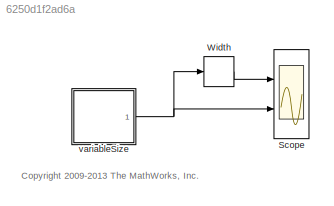
MODEL slx_6250d1f2ad6a
KIND model
CONFIG AbsTol = auto
CONFIG EnableMultiTasking = on
CONFIG FixedStep = auto
CONFIG MaxStep = auto
CONFIG MinStep = auto
CONFIG RelTol = 1e-3
CONFIG SampleTimeConstraint = Unconstrained
CONFIG Solver = FixedStepDiscrete
CONFIG SolverName = FixedStepDiscrete
CONFIG StartTime = 0.0
CONFIG StopTime = 5.0
BLOCK [Scope] Scope
  NumInputPorts = 2
  Ports = [2]
  ScopeSpecificationString = Simulink.scopes.TimeScopeBlockCfg('CurrentConfiguration', extmgr.ConfigurationSet(extmgr.Configuration('Core','General UI',true),extmgr.Configuration('Core','Source UI',true),extmgr.Configuration('Sources','WiredSimulink',true,'DataLoggingSaveFormat','StructureWithTime','DataLoggingLimitDataPoints',true,'DataLoggingDecimation','1'),extmgr.Configuration('Visuals','Time Domain',true,'SerializedDispl...<+2413ch>
BLOCK [Width] Width
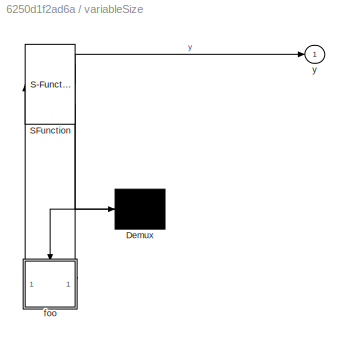
BLOCK [SubSystem] variableSize
  ErrorFcn = Stateflow.Translate.translate
  PermitHierarchicalResolution = ExplicitOnly
  Ports = [0, 1]
  RequestExecContextInheritance = off
  SFBlockType = Chart
  TreatAsAtomicUnit = on
  Variant = off
BLOCK [Demux] variableSize/ Demux 
  Outputs = 1
  Ports = [1, 1]
BLOCK [S-Function] variableSize/ SFunction 
  EnableBusSupport = off
  FunctionName = sf_sfun
  PortCounts = [1 3]
  Ports = [1, 3]
  SFcnIsStateOwnerBlock = off
  SFunctionDeploymentMode = off
  Tag = Stateflow S-Function sf_variable_size_data 1
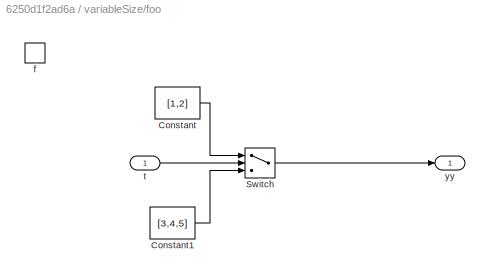
BLOCK [SubSystem] variableSize/foo
  Ports = [1, 1, 0, 1]
  PreDeleteFcn = Stateflow.SLINSF.SimulinkMan.removePreDeleteFcn
  RequestExecContextInheritance = off
  UndoDeleteFcn = Stateflow.SLINSF.SimulinkMan.restorePreDeleteFcn
  Variant = off
BLOCK [Constant] variableSize/foo/Constant
  Value = [1,2]
BLOCK [Constant] variableSize/foo/Constant1
  Value = [3,4,5]
BLOCK [Switch] variableSize/foo/Switch
  AllowDiffInputSizes = on
  InputSameDT = off
  SaturateOnIntegerOverflow = off
  Threshold = 2
BLOCK [TriggerPort] variableSize/foo/f
  CopyFcn = Stateflow.SLINSF.SimulinkMan.removeBlockPreDeleteFcn
  Ports = []
  PreDeleteFcn = Stateflow.SLINSF.SimulinkMan.unsafePredeleteFcn
  TriggerType = function-call
  VariantControl = (inherit)
BLOCK [Inport] variableSize/foo/t
  IconDisplay = Port number
BLOCK [Outport] variableSize/foo/yy
  IconDisplay = Port number
BLOCK [Outport] variableSize/y
  IconDisplay = Port number
ANNOTATION (root): <copyright redacted>
LINE Width:1 -> Scope:1
NET variableSize:1 -> Scope:2, Width:1
note: NET lines group one-source signal fan-out (src -> all destinations, sorted); 1:1 wires keep LINE
CHART variableSize states=1 transitions=1
  STATE_LABEL 'yy = foo(t)'
